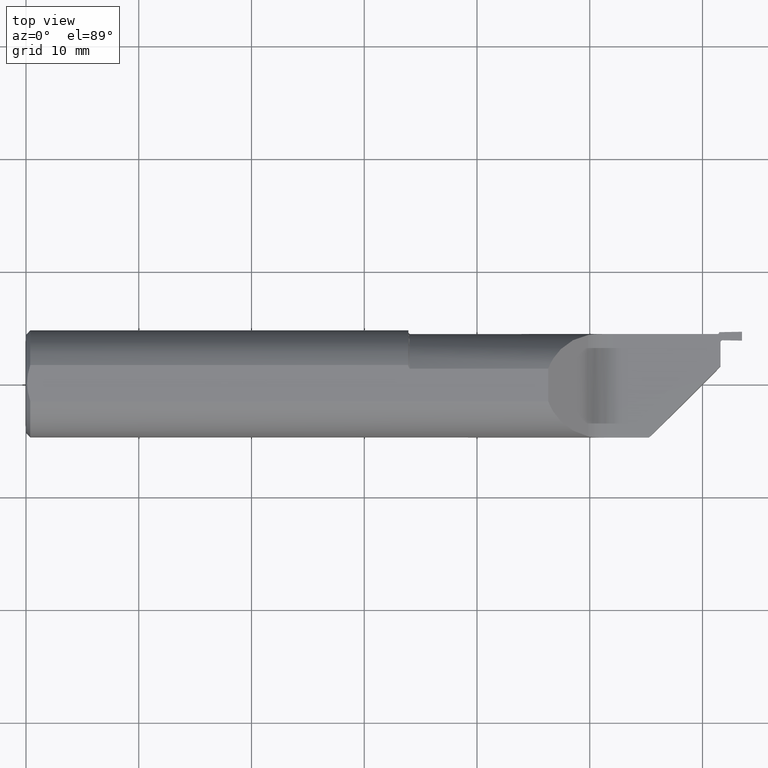
[diagram: clean part render]
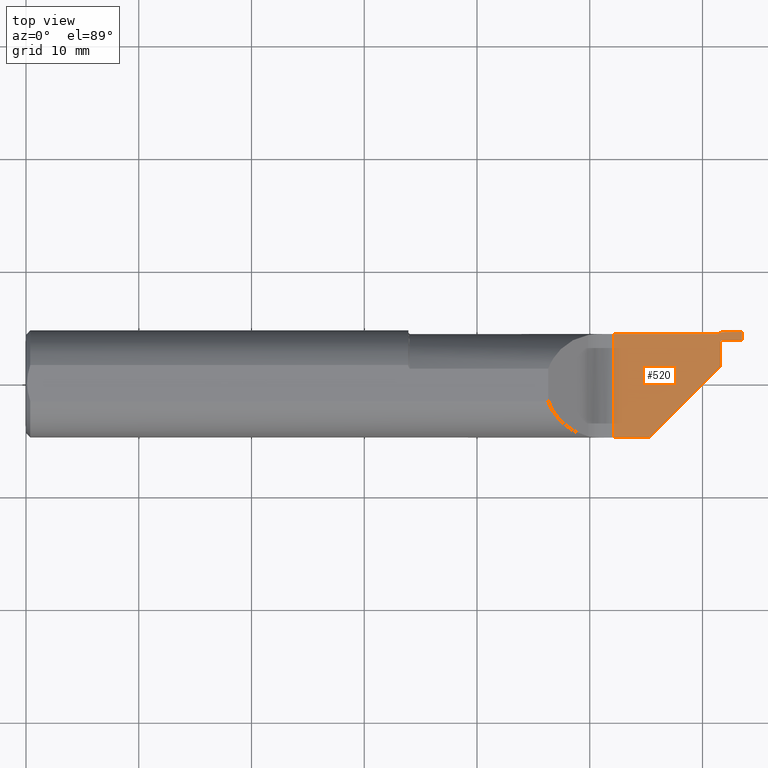
[diagram: same view with one face highlighted and labeled with its STEP entity id]
A machine part, top view. The second image highlights one B-rep face of the part: STEP entity #520.
In plain terms, the highlighted planar face has unit normal (0, 0, -1).
Its self-contained STEP definition (entity closure, byte-faithful):
#6 = DIRECTION ( 'NONE',  ( -1.000000000000000000, -0.000000000000000000, -0.000000000000000000 ) ) ;
#53 = VERTEX_POINT ( 'NONE', #68 ) ;
#58 = AXIS2_PLACEMENT_3D ( 'NONE', #212, #551, #695 ) ;
#62 = ORIENTED_EDGE ( 'NONE', *, *, #301, .F. ) ;
#64 = DIRECTION ( 'NONE',  ( 0.000000000000000000, 1.000000000000000000, 0.000000000000000000 ) ) ;
#66 = CARTESIAN_POINT ( 'NONE',  ( 2.415000000000000036, 0.1793492383597802831, 0.000000000000000000 ) ) ;
#68 = CARTESIAN_POINT ( 'NONE',  ( 2.500000000000000000, 0.1513492383597803692, 0.000000000000000000 ) ) ;
#71 = CIRCLE ( 'NONE', #532, 0.007999999999999750366 ) ;
#73 = CARTESIAN_POINT ( 'NONE',  ( 2.425000000000000266, 0.06265000000000001124, 0.000000000000000000 ) ) ;
#76 = DIRECTION ( 'NONE',  ( 0.9998476951563914916, 0.01745240643726934937, 0.000000000000000000 ) ) ;
#85 = DIRECTION ( 'NONE',  ( 1.000000000000000000, 0.000000000000000000, 0.000000000000000000 ) ) ;
#87 = DIRECTION ( 'NONE',  ( 0.000000000000000000, -1.000000000000000000, 0.000000000000000000 ) ) ;
#88 = EDGE_CURVE ( 'NONE', #53, #704, #685, .T. ) ;
#91 = CARTESIAN_POINT ( 'NONE',  ( 2.051776695296636976, -0.1873499999999999888, 0.000000000000000000 ) ) ;
#95 = CARTESIAN_POINT ( 'NONE',  ( 2.051776695296636976, -0.2873499999999999943, 0.000000000000000000 ) ) ;
#97 = DIRECTION ( 'NONE',  ( -0.7071067811865483499, -0.7071067811865465735, 0.000000000000000000 ) ) ;
#98 = DIRECTION ( 'NONE',  ( -0.000000000000000000, -1.000000000000000000, -0.000000000000000000 ) ) ;
#109 = CARTESIAN_POINT ( 'NONE',  ( 2.425000000000000266, 0.06265000000000001124, 0.000000000000000000 ) ) ;
#111 = ORIENTED_EDGE ( 'NONE', *, *, #88, .T. ) ;
#128 = CARTESIAN_POINT ( 'NONE',  ( 2.432999999999999829, 0.1445175090856191114, 0.000000000000000000 ) ) ;
#133 = CARTESIAN_POINT ( 'NONE',  ( 2.500000000000000000, -0.2873499999999999943, 0.000000000000000000 ) ) ;
#138 = VECTOR ( 'NONE', #76, 39.37007874015748854 ) ;
#142 = VERTEX_POINT ( 'NONE', #411 ) ;
#143 = CARTESIAN_POINT ( 'NONE',  ( 0.000000000000000000, -0.1873499999999999888, 0.000000000000000000 ) ) ;
#152 = EDGE_CURVE ( 'NONE', #742, #510, #71, .T. ) ;
#153 = CARTESIAN_POINT ( 'NONE',  ( 2.425000000000000266, 0.1445175090856191114, 0.000000000000000000 ) ) ;
#156 = EDGE_CURVE ( 'NONE', #446, #575, #396, .T. ) ;
#165 = LINE ( 'NONE', #95, #657 ) ;
#192 = AXIS2_PLACEMENT_3D ( 'NONE', #66, #418, #483 ) ;
#208 = EDGE_CURVE ( 'NONE', #53, #742, #555, .T. ) ;
#212 = CARTESIAN_POINT ( 'NONE',  ( 2.000000000000000000, -0.2873499999999999943, 0.000000000000000000 ) ) ;
#223 = VECTOR ( 'NONE', #560, 39.37007874015748854 ) ;
#226 = DIRECTION ( 'NONE',  ( 0.000000000000000000, 1.000000000000000000, 0.000000000000000000 ) ) ;
#238 = CARTESIAN_POINT ( 'NONE',  ( 2.433139705841341094, 0.1525162891354388817, 1.493979371535143794E-17 ) ) ;
#271 = CARTESIAN_POINT ( 'NONE',  ( 2.425000000000000266, 0.1445175090856191114, 0.000000000000000000 ) ) ;
#290 = CARTESIAN_POINT ( 'NONE',  ( 2.500000000000000000, 0.1823492383597802857, -5.186242675471999688E-16 ) ) ;
#294 = VECTOR ( 'NONE', #87, 39.37007874015748143 ) ;
#301 = EDGE_CURVE ( 'NONE', #142, #698, #496, .T. ) ;
#311 = EDGE_CURVE ( 'NONE', #727, #704, #419, .T. ) ;
#320 = EDGE_LOOP ( 'NONE', ( #583, #442, #862, #820, #62, #807, #568, #464, #884, #111, #422 ) ) ;
#332 = DIRECTION ( 'NONE',  ( -1.000000000000000000, 0.000000000000000000, 0.000000000000000000 ) ) ;
#337 = DIRECTION ( 'NONE',  ( 0.000000000000000000, 0.000000000000000000, 1.000000000000000000 ) ) ;
#356 = LINE ( 'NONE', #153, #294 ) ;
#369 = VECTOR ( 'NONE', #85, 39.37007874015748143 ) ;
#374 = CARTESIAN_POINT ( 'NONE',  ( 2.420000000000000373, 0.1793492383597802831, 0.000000000000000000 ) ) ;
#378 = VECTOR ( 'NONE', #226, 39.37007874015748143 ) ;
#396 = CIRCLE ( 'NONE', #192, 0.005000000000000083371 ) ;
#402 = VERTEX_POINT ( 'NONE', #73 ) ;
#410 = EDGE_CURVE ( 'NONE', #510, #402, #356, .T. ) ;
#411 = CARTESIAN_POINT ( 'NONE',  ( 2.174999999999999822, -0.1873499999999999888, 0.000000000000000000 ) ) ;
#418 = DIRECTION ( 'NONE',  ( -0.000000000000000000, -0.000000000000000000, 1.000000000000000000 ) ) ;
#419 = LINE ( 'NONE', #700, #138 ) ;
#422 = ORIENTED_EDGE ( 'NONE', *, *, #311, .F. ) ;
#433 = CARTESIAN_POINT ( 'NONE',  ( 2.420000000000000373, -0.2873499999999999943, 0.000000000000000000 ) ) ;
#442 = ORIENTED_EDGE ( 'NONE', *, *, #156, .F. ) ;
#446 = VERTEX_POINT ( 'NONE', #715 ) ;
#449 = LINE ( 'NONE', #433, #378 ) ;
#452 = VECTOR ( 'NONE', #97, 39.37007874015748854 ) ;
#464 = ORIENTED_EDGE ( 'NONE', *, *, #152, .F. ) ;
#475 = VECTOR ( 'NONE', #64, 39.37007874015748143 ) ;
#479 = EDGE_CURVE ( 'NONE', #525, #446, #777, .T. ) ;
#483 = DIRECTION ( 'NONE',  ( -1.000000000000000000, 0.000000000000000000, 0.000000000000000000 ) ) ;
#494 = VECTOR ( 'NONE', #6, 39.37007874015748143 ) ;
#496 = LINE ( 'NONE', #143, #494 ) ;
#510 = VERTEX_POINT ( 'NONE', #271 ) ;
#517 = LINE ( 'NONE', #109, #452 ) ;
#520 = ADVANCED_FACE ( 'NONE', ( #843 ), #566, .F. ) ;
#525 = VERTEX_POINT ( 'NONE', #767 ) ;
#532 = AXIS2_PLACEMENT_3D ( 'NONE', #128, #337, #332 ) ;
#551 = DIRECTION ( 'NONE',  ( 0.000000000000000000, 0.000000000000000000, -1.000000000000000000 ) ) ;
#555 = LINE ( 'NONE', #836, #223 ) ;
#560 = DIRECTION ( 'NONE',  ( -0.9998476951563912696, 0.01745240643727482416, -0.000000000000000000 ) ) ;
#566 = PLANE ( 'NONE',  #58 ) ;
#568 = ORIENTED_EDGE ( 'NONE', *, *, #410, .F. ) ;
#575 = VERTEX_POINT ( 'NONE', #374 ) ;
#577 = EDGE_CURVE ( 'NONE', #525, #698, #165, .T. ) ;
#583 = ORIENTED_EDGE ( 'NONE', *, *, #598, .F. ) ;
#598 = EDGE_CURVE ( 'NONE', #575, #727, #449, .T. ) ;
#629 = CARTESIAN_POINT ( 'NONE',  ( 0.9958286716179119979, 0.1743492383597801398, 0.000000000000000000 ) ) ;
#657 = VECTOR ( 'NONE', #98, 39.37007874015748143 ) ;
#685 = LINE ( 'NONE', #133, #475 ) ;
#695 = DIRECTION ( 'NONE',  ( -1.000000000000000000, 0.000000000000000000, -0.000000000000000000 ) ) ;
#698 = VERTEX_POINT ( 'NONE', #91 ) ;
#700 = CARTESIAN_POINT ( 'NONE',  ( 2.590073554596261651, 0.1839214781035721502, 0.000000000000000000 ) ) ;
#704 = VERTEX_POINT ( 'NONE', #290 ) ;
#715 = CARTESIAN_POINT ( 'NONE',  ( 2.415000000000000480, 0.1743492383597801398, 0.000000000000000000 ) ) ;
#727 = VERTEX_POINT ( 'NONE', #819 ) ;
#742 = VERTEX_POINT ( 'NONE', #238 ) ;
#767 = CARTESIAN_POINT ( 'NONE',  ( 2.051776695296636976, 0.1743492383597801676, 0.000000000000000000 ) ) ;
#777 = LINE ( 'NONE', #629, #369 ) ;
#807 = ORIENTED_EDGE ( 'NONE', *, *, #897, .F. ) ;
#819 = CARTESIAN_POINT ( 'NONE',  ( 2.420000000000000373, 0.1809528331655240740, 0.000000000000000000 ) ) ;
#820 = ORIENTED_EDGE ( 'NONE', *, *, #577, .T. ) ;
#836 = CARTESIAN_POINT ( 'NONE',  ( 2.433139619251498242, 0.1525162906468702506, 0.000000000000000000 ) ) ;
#843 = FACE_OUTER_BOUND ( 'NONE', #320, .T. ) ;
#862 = ORIENTED_EDGE ( 'NONE', *, *, #479, .F. ) ;
#884 = ORIENTED_EDGE ( 'NONE', *, *, #208, .F. ) ;
#897 = EDGE_CURVE ( 'NONE', #402, #142, #517, .T. ) ;